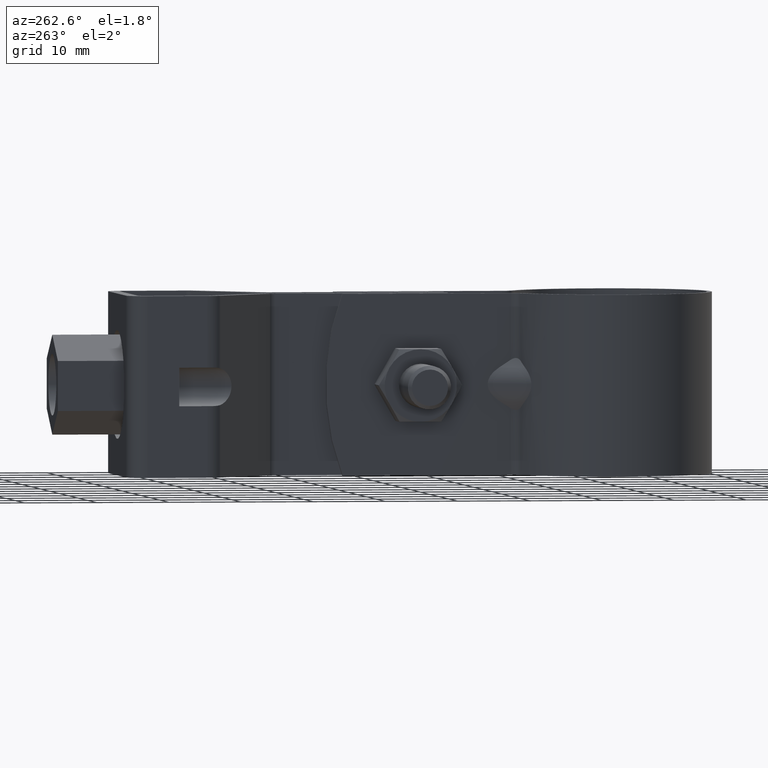
[diagram: clean part render]
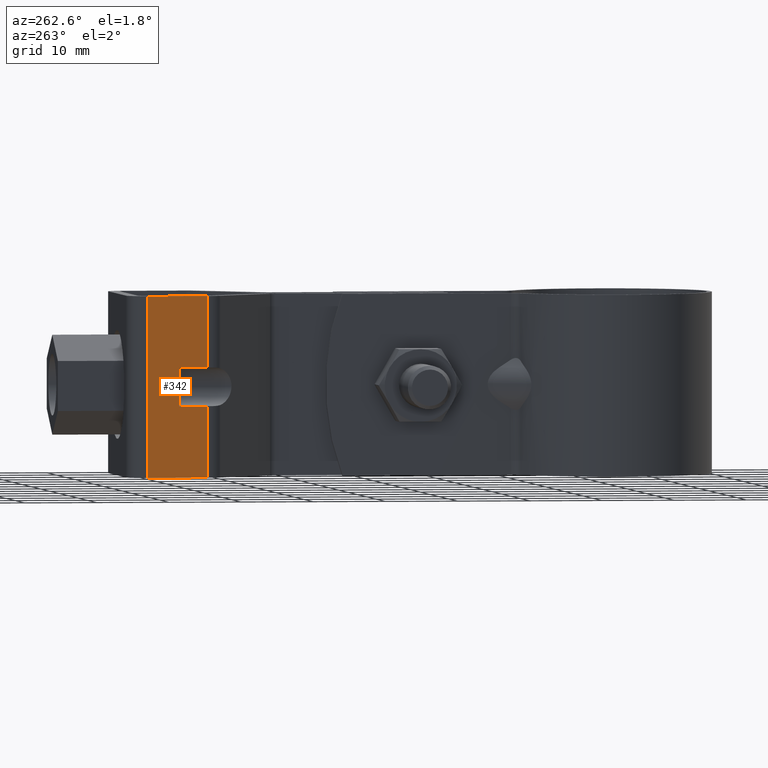
[diagram: same view with one face highlighted and labeled with its STEP entity id]
A machine part, auxiliary view. The second image highlights one B-rep face of the part: STEP entity #342.
In plain terms, the highlighted planar face has unit normal (-1, 0, 0).
Its self-contained STEP definition (entity closure, byte-faithful):
#342 = ADVANCED_FACE( '', ( #555 ), #556, .T. );
#555 = FACE_OUTER_BOUND( '', #827, .T. );
#556 = PLANE( '', #828 );
#827 = EDGE_LOOP( '', ( #1548, #1549, #1550, #1551, #1552, #1553, #1554, #1555 ) );
#828 = AXIS2_PLACEMENT_3D( '', #1556, #1557, #1558 );
#1548 = ORIENTED_EDGE( '', *, *, #2152, .T. );
#1549 = ORIENTED_EDGE( '', *, *, #2153, .T. );
#1550 = ORIENTED_EDGE( '', *, *, #2154, .F. );
#1551 = ORIENTED_EDGE( '', *, *, #2113, .F. );
#1552 = ORIENTED_EDGE( '', *, *, #2150, .T. );
#1553 = ORIENTED_EDGE( '', *, *, #2138, .T. );
#1554 = ORIENTED_EDGE( '', *, *, #2148, .F. );
#1555 = ORIENTED_EDGE( '', *, *, #2134, .F. );
#1556 = CARTESIAN_POINT( '', ( -12.2499999966612, 57.1797443713175, -12.4999986892837 ) );
#1557 = DIRECTION( '', ( -1.00000000000000, 1.39876275925575E-011, 1.87698705788703E-011 ) );
#1558 = DIRECTION( '', ( -1.39876277799465E-011, -1.00000000000000, -9.98350074832280E-009 ) );
#2113 = EDGE_CURVE( '', #2556, #2558, #2559, .T. );
#2134 = EDGE_CURVE( '', #2595, #2597, #2598, .T. );
#2138 = EDGE_CURVE( '', #2605, #2603, #2606, .T. );
#2148 = EDGE_CURVE( '', #2597, #2603, #2622, .T. );
#2150 = EDGE_CURVE( '', #2556, #2605, #2624, .T. );
#2152 = EDGE_CURVE( '', #2595, #2626, #2627, .T. );
#2153 = EDGE_CURVE( '', #2626, #2628, #2629, .T. );
#2154 = EDGE_CURVE( '', #2558, #2628, #2630, .T. );
#2556 = VERTEX_POINT( '', #3306 );
#2558 = VERTEX_POINT( '', #3308 );
#2559 = LINE( '', #3309, #3310 );
#2595 = VERTEX_POINT( '', #3356 );
#2597 = VERTEX_POINT( '', #3367 );
#2598 = LINE( '', #3368, #3369 );
#2603 = VERTEX_POINT( '', #3374 );
#2605 = VERTEX_POINT( '', #3376 );
#2606 = LINE( '', #3377, #3378 );
#2622 = LINE( '', #3415, #3416 );
#2624 = LINE( '', #3419, #3420 );
#2626 = VERTEX_POINT( '', #3423 );
#2627 = LINE( '', #3424, #3425 );
#2628 = VERTEX_POINT( '', #3426 );
#2629 = LINE( '', #3427, #3428 );
#2630 = LINE( '', #3429, #3430 );
#3306 = CARTESIAN_POINT( '', ( -12.2499999966612, 57.1797443713175, -12.4999986892837 ) );
#3308 = CARTESIAN_POINT( '', ( -12.2499999965450, 65.4839385722033, -12.4999986063788 ) );
#3309 = CARTESIAN_POINT( '', ( -12.2499999966612, 57.1797443713175, -12.4999986892837 ) );
#3310 = VECTOR( '', #3982, 1000.00000000000 );
#3356 = CARTESIAN_POINT( '', ( -12.2499999963768, 57.1797442200674, 2.65000131071627 ) );
#3367 = CARTESIAN_POINT( '', ( -12.2499999963222, 61.0839384209530, 2.65000134969380 ) );
#3368 = CARTESIAN_POINT( '', ( -12.2499999964621, 51.0839384209530, 2.65000124985879 ) );
#3369 = VECTOR( '', #4020, 1000.00000000000 );
#3374 = CARTESIAN_POINT( '', ( -12.2499999964217, 61.0839384738656, -2.64999865030614 ) );
#3376 = CARTESIAN_POINT( '', ( -12.2499999964763, 57.1797442729799, -2.64999868928367 ) );
#3377 = CARTESIAN_POINT( '', ( -12.2499999965615, 51.0839384738656, -2.64999875014116 ) );
#3378 = VECTOR( '', #4030, 1000.00000000000 );
#3415 = CARTESIAN_POINT( '', ( -12.2499999962922, 61.0839384049797, 4.25000134969379 ) );
#3416 = VECTOR( '', #4041, 1000.00000000000 );
#3419 = CARTESIAN_POINT( '', ( -12.2499999966612, 57.1797443713175, -12.4999986892837 ) );
#3420 = VECTOR( '', #4043, 1000.00000000000 );
#3423 = CARTESIAN_POINT( '', ( -12.2499999961919, 57.1797441217299, 12.5000013107163 ) );
#3424 = CARTESIAN_POINT( '', ( -12.2499999966612, 57.1797443713175, -12.4999986892837 ) );
#3425 = VECTOR( '', #4045, 1000.00000000000 );
#3426 = CARTESIAN_POINT( '', ( -12.2499999960758, 65.4839383226158, 12.5000013936212 ) );
#3427 = CARTESIAN_POINT( '', ( -12.2499999961919, 57.1797441217299, 12.5000013107163 ) );
#3428 = VECTOR( '', #4046, 1000.00000000000 );
#3429 = CARTESIAN_POINT( '', ( -12.2499999965450, 65.4839385722033, -12.4999986063788 ) );
#3430 = VECTOR( '', #4047, 1000.00000000000 );
#3982 = DIRECTION( '', ( 1.39876277799465E-011, 1.00000000000000, 9.98350074832280E-009 ) );
#4020 = DIRECTION( '', ( 1.39876277799465E-011, 1.00000000000000, 9.98350074832280E-009 ) );
#4030 = DIRECTION( '', ( 1.39876277799465E-011, 1.00000000000000, 9.98350074832280E-009 ) );
#4041 = DIRECTION( '', ( -1.87698722897608E-011, 9.98350074832307E-009, -1.00000000000000 ) );
#4043 = DIRECTION( '', ( 1.87698704392248E-011, -9.98350074832307E-009, 1.00000000000000 ) );
#4045 = DIRECTION( '', ( 1.87698704392248E-011, -9.98350074832307E-009, 1.00000000000000 ) );
#4046 = DIRECTION( '', ( 1.39876277799465E-011, 1.00000000000000, 9.98350074832280E-009 ) );
#4047 = DIRECTION( '', ( 1.87698704392248E-011, -9.98350074832307E-009, 1.00000000000000 ) );